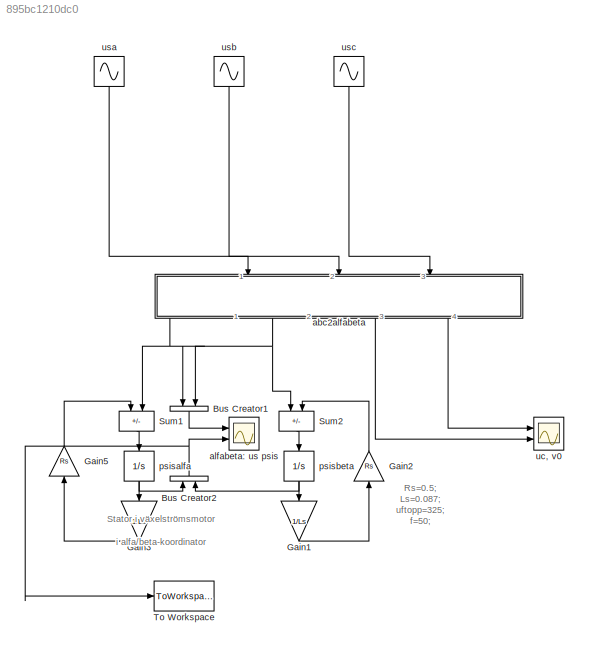
MODEL slx_895bc1210dc0
KIND model
CONFIG AbsTol = auto
CONFIG EnableMultiTasking = on
CONFIG FixedStep = auto
CONFIG MaxStep = auto
CONFIG MinStep = auto
CONFIG RelTol = 1e-6
CONFIG SampleTimeConstraint = Unconstrained
CONFIG Solver = ode45
CONFIG SolverName = ode45
CONFIG StartTime = 0.0
CONFIG StopTime = 0.05
BLOCK [BusCreator] Bus Creator1
  DisplayOption = bar
  InheritFromInputs = on
  Inputs = 2
  NameLocation = left
  Ports = [2, 1]
BLOCK [BusCreator] Bus Creator2
  DisplayOption = bar
  InheritFromInputs = on
  Inputs = 2
  NameLocation = right
  Ports = [2, 1]
BLOCK [Gain] Gain1
  Gain = 1/Ls
  NameLocation = left
  OutDataTypeStr = Inherit: Same as input
  ParamDataTypeStr = Inherit: Same as input
  SaturateOnIntegerOverflow = on
BLOCK [Gain] Gain2
  Gain = Rs
  NameLocation = right
  OutDataTypeStr = Inherit: Same as input
  ParamDataTypeStr = Inherit: Same as input
  SaturateOnIntegerOverflow = on
BLOCK [Gain] Gain3
  Gain = 1/Ls
  NameLocation = left
  OutDataTypeStr = Inherit: Same as input
  ParamDataTypeStr = Inherit: Same as input
  SaturateOnIntegerOverflow = on
BLOCK [Gain] Gain5
  Gain = Rs
  NameLocation = right
  OutDataTypeStr = Inherit: Same as input
  ParamDataTypeStr = Inherit: Same as input
  SaturateOnIntegerOverflow = on
BLOCK [Sum] Sum1
  IconShape = rectangular
  Inputs = -+
  NameLocation = left
  Ports = [2, 1]
  SaturateOnIntegerOverflow = on
BLOCK [Sum] Sum2
  IconShape = rectangular
  Inputs = +-
  NameLocation = left
  Ports = [2, 1]
  SaturateOnIntegerOverflow = on
BLOCK [ToWorkspace] To Workspace
  MaxDataPoints = inf
  Ports = [1]
  SampleTime = -1
  SaveFormat = Timeseries
  VariableName = psis
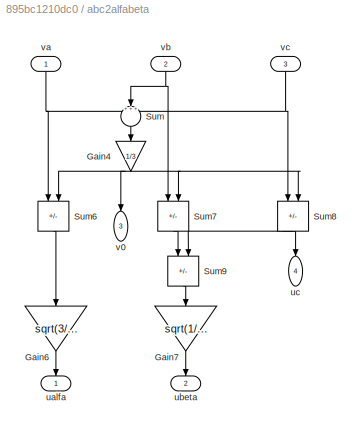
BLOCK [SubSystem] abc2alfabeta
  NameLocation = left
  Ports = [3, 4]
  RequestExecContextInheritance = off
BLOCK [Gain] abc2alfabeta/Gain4
  Gain = 1/3
  NameLocation = left
  OutDataTypeStr = Inherit: Same as input
  ParamDataTypeStr = Inherit: Same as input
  SaturateOnIntegerOverflow = on
BLOCK [Gain] abc2alfabeta/Gain6
  Gain = sqrt(3/2)
  NameLocation = left
  OutDataTypeStr = Inherit: Same as input
  ParamDataTypeStr = Inherit: Same as input
  SaturateOnIntegerOverflow = on
BLOCK [Gain] abc2alfabeta/Gain7
  Gain = sqrt(1/2)
  NameLocation = left
  OutDataTypeStr = Inherit: Same as input
  ParamDataTypeStr = Inherit: Same as input
  SaturateOnIntegerOverflow = on
BLOCK [Sum] abc2alfabeta/Sum
  Inputs = +++
  NameLocation = left
  Ports = [3, 1]
BLOCK [Sum] abc2alfabeta/Sum6
  IconShape = rectangular
  InputSameDT = on
  Inputs = +-
  NameLocation = right
  OutDataTypeStr = Inherit: Same as first input
  Ports = [2, 1]
  SaturateOnIntegerOverflow = on
BLOCK [Sum] abc2alfabeta/Sum7
  IconShape = rectangular
  InputSameDT = on
  Inputs = +-
  NameLocation = right
  OutDataTypeStr = Inherit: Same as first input
  Ports = [2, 1]
  SaturateOnIntegerOverflow = on
BLOCK [Sum] abc2alfabeta/Sum8
  IconShape = rectangular
  InputSameDT = on
  Inputs = +-
  NameLocation = right
  OutDataTypeStr = Inherit: Same as first input
  Ports = [2, 1]
  SaturateOnIntegerOverflow = on
BLOCK [Sum] abc2alfabeta/Sum9
  IconShape = rectangular
  InputSameDT = on
  Inputs = +-
  NameLocation = right
  OutDataTypeStr = Inherit: Same as first input
  Ports = [2, 1]
  SaturateOnIntegerOverflow = on
BLOCK [Outport] abc2alfabeta/ualfa
  NameLocation = right
  VectorParamsAs1DForOutWhenUnconnected = off
BLOCK [Outport] abc2alfabeta/ubeta
  NameLocation = right
  Port = 2
  VectorParamsAs1DForOutWhenUnconnected = off
BLOCK [Outport] abc2alfabeta/uc
  NameLocation = left
  Port = 4
  VectorParamsAs1DForOutWhenUnconnected = off
BLOCK [Outport] abc2alfabeta/v0
  NameLocation = left
  Port = 3
  VectorParamsAs1DForOutWhenUnconnected = off
BLOCK [Inport] abc2alfabeta/va
  NameLocation = right
BLOCK [Inport] abc2alfabeta/vb
  NameLocation = right
  Port = 2
BLOCK [Inport] abc2alfabeta/vc
  NameLocation = right
  Port = 3
BLOCK [Scope] alfabeta: us psis
  Floating = off
  NumInputPorts = 2
  Ports = [2]
  ScopeSpecificationString = Simulink.scopes.TimeScopeBlockCfg('CurrentConfiguration', extmgr.ConfigurationSet(extmgr.Configuration('Core','General UI',true),extmgr.Configuration('Core','Source UI',true),extmgr.Configuration('Sources','WiredSimulink',true,'DataLogging',true,'DataLoggingVariableName','uspsis','DataLoggingSaveFormat','StructureWithTime','DataLoggingDecimation','1','DataLoggingDecimateData',true),extmgr.Configur...<+2476ch>
BLOCK [Integrator] psisalfa
  InitialCondition = -1.24
  NameLocation = left
  Ports = [1, 1]
BLOCK [Integrator] psisbeta
  NameLocation = right
  Ports = [1, 1]
BLOCK [Scope] uc, v0
  Floating = off
  NumInputPorts = 2
  Ports = [2]
  ScopeSpecificationString = Simulink.scopes.TimeScopeBlockCfg('CurrentConfiguration', extmgr.ConfigurationSet(extmgr.Configuration('Core','General UI',true),extmgr.Configuration('Core','Source UI',true),extmgr.Configuration('Sources','WiredSimulink',true,'DataLoggingSaveFormat','StructureWithTime','DataLoggingDecimation','1','DataLoggingDecimateData',true),extmgr.Configuration('Visuals','Time Domain',true,'SerializedDisplays...<+2397ch>
BLOCK [Sin] usa
  Amplitude = uftopp
  Frequency = 2*pi*f
  NameLocation = left
  Ports = [0, 1]
  SampleTime = 0
BLOCK [Sin] usb
  Amplitude = uftopp
  Frequency = 2*pi*f
  NameLocation = left
  Phase = -2*pi/3
  Ports = [0, 1]
  SampleTime = 0
BLOCK [Sin] usc
  Amplitude = uftopp
  Frequency = 2*pi*f
  NameLocation = left
  Phase = -4*pi/3
  Ports = [0, 1]
  SampleTime = 0
ANNOTATION (root): Rs=0.5; Ls=0.087; uftopp=325; f=50;
ANNOTATION (root): Stator i växelströmsmotor i alfa/beta-koordinator
LINE Bus Creator1:1 -> alfabeta: us psis:1
NET Bus Creator2:1 -> To Workspace:1, alfabeta: us psis:2
LINE Gain1:1 -> Gain2:1
LINE Gain2:1 -> Sum2:2
LINE Gain3:1 -> Gain5:1
LINE Gain5:1 -> Sum1:1
LINE Sum1:1 -> psisalfa:1
LINE Sum2:1 -> psisbeta:1
NET abc2alfabeta/Gain4:1 -> abc2alfabeta/Sum6:2, abc2alfabeta/Sum7:2, abc2alfabeta/Sum8:2, abc2alfabeta/v0:1
LINE abc2alfabeta/Gain6:1 -> abc2alfabeta/ualfa:1
LINE abc2alfabeta/Gain7:1 -> abc2alfabeta/ubeta:1
LINE abc2alfabeta/Sum6:1 -> abc2alfabeta/Gain6:1
LINE abc2alfabeta/Sum7:1 -> abc2alfabeta/Sum9:1
NET abc2alfabeta/Sum8:1 -> abc2alfabeta/Sum9:2, abc2alfabeta/uc:1
LINE abc2alfabeta/Sum9:1 -> abc2alfabeta/Gain7:1
LINE abc2alfabeta/Sum:1 -> abc2alfabeta/Gain4:1
NET abc2alfabeta/va:1 -> abc2alfabeta/Sum6:1, abc2alfabeta/Sum:1
NET abc2alfabeta/vb:1 -> abc2alfabeta/Sum7:1, abc2alfabeta/Sum:2
NET abc2alfabeta/vc:1 -> abc2alfabeta/Sum8:1, abc2alfabeta/Sum:3
NET abc2alfabeta:1 -> Bus Creator1:1, Sum1:2
NET abc2alfabeta:2 -> Bus Creator1:2, Sum2:1
LINE abc2alfabeta:3 -> uc, v0:2
LINE abc2alfabeta:4 -> uc, v0:1
NET psisalfa:1 -> Bus Creator2:1, Gain3:1
NET psisbeta:1 -> Bus Creator2:2, Gain1:1
LINE usa:1 -> abc2alfabeta:1
LINE usb:1 -> abc2alfabeta:2
LINE usc:1 -> abc2alfabeta:3
note: NET lines group one-source signal fan-out (src -> all destinations, sorted); 1:1 wires keep LINE
